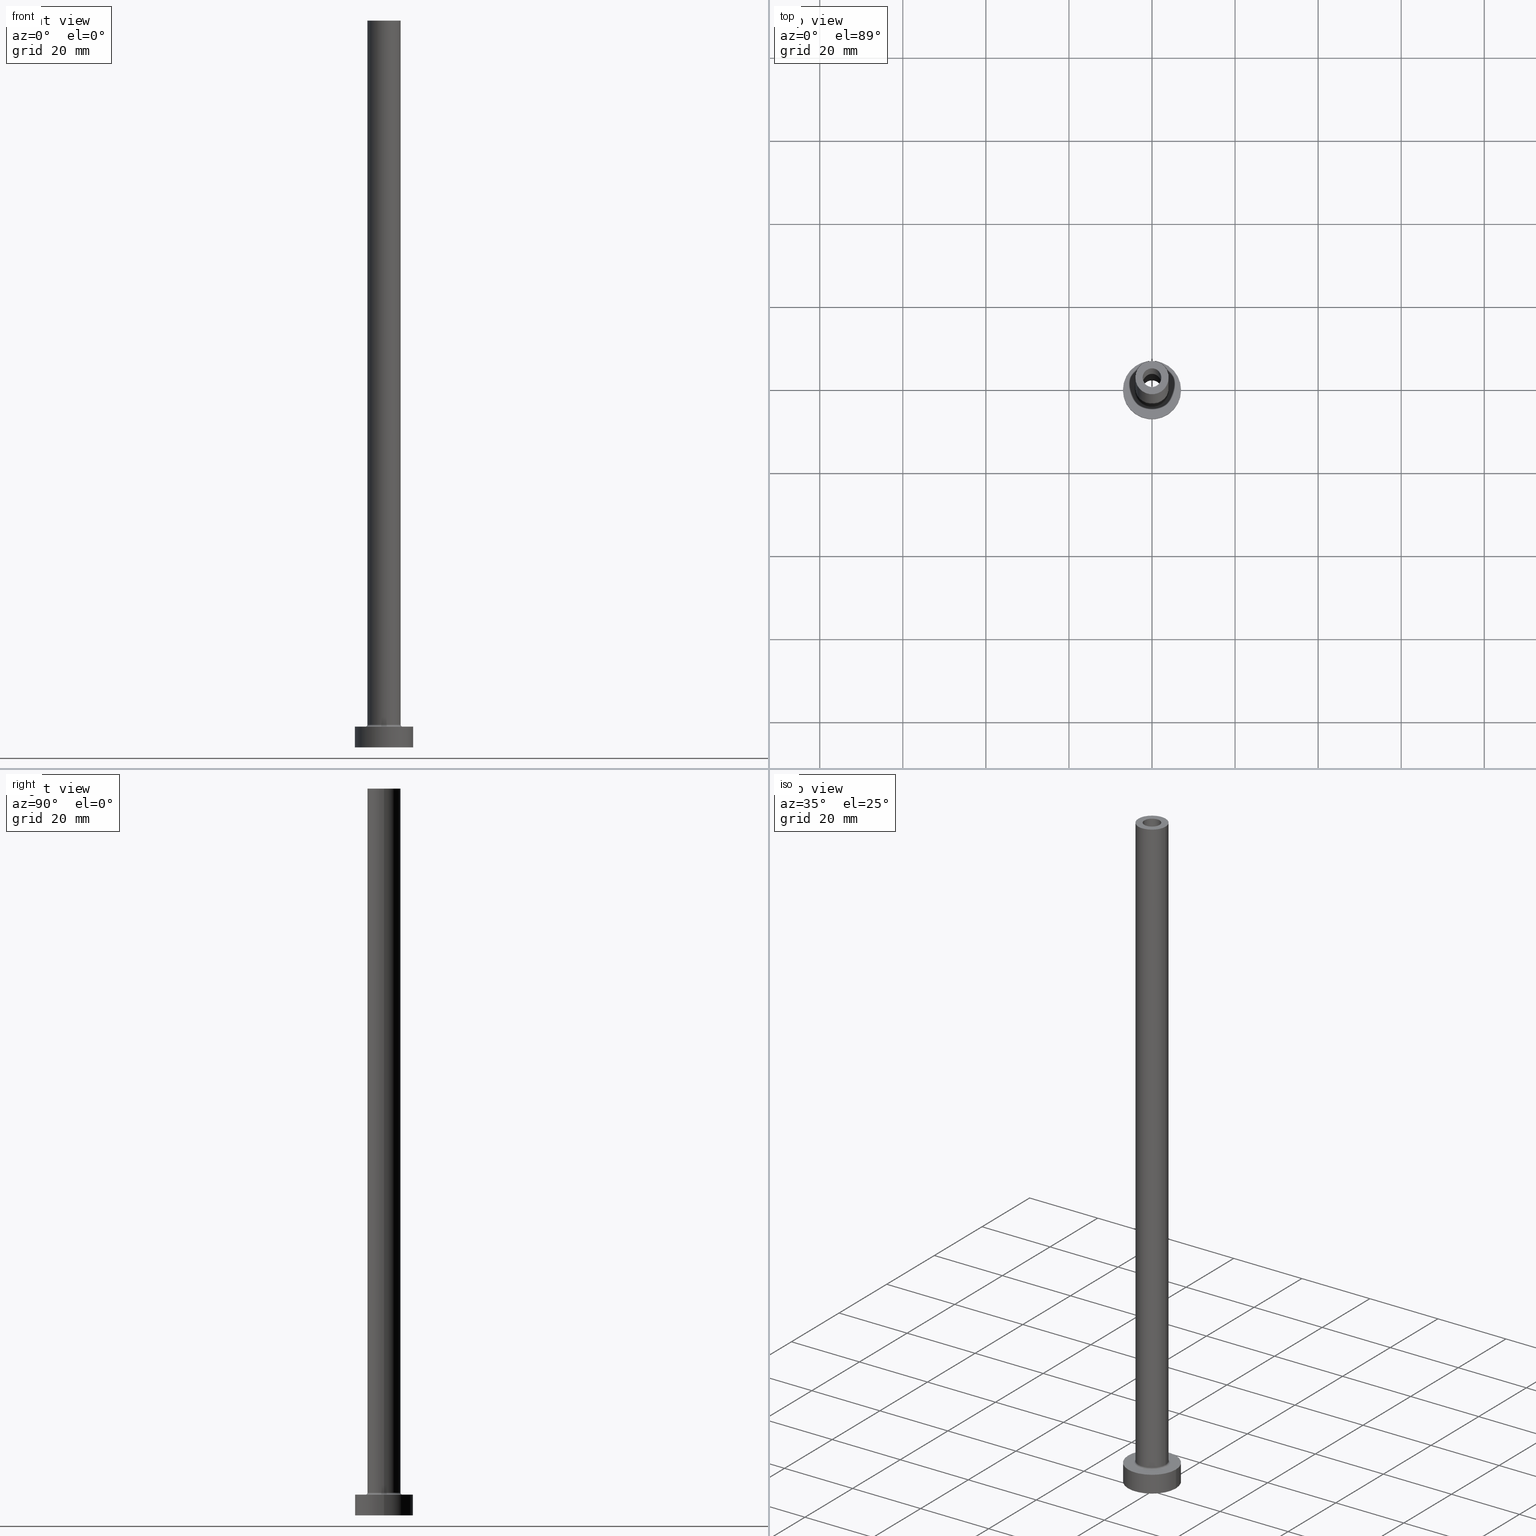
[diagram: canonical four-view strip — front | top / right | iso, engineering-drawing reading convention]
A machine part, canonical four-view strip (front | top / right | iso — engineering-drawing reading convention). The complete STEP part file that produces these views, byte-faithful:
ISO-10303-21;
HEADER;
FILE_DESCRIPTION (( 'STEP AP203' ),
    '1' );
FILE_NAME ('317a.STEP',
    '2023-02-13T11:04:57',
    ( '' ),
    ( '' ),
    'SwSTEP 2.0',
    'SolidWorks 2019',
    '' );
FILE_SCHEMA (( 'CONFIG_CONTROL_DESIGN' ));
ENDSEC;

DATA;
#1 = LOCAL_TIME ( 12, 4, 57.00000000000000000, #87 ) ;
#2 = DIRECTION ( 'NONE',  ( -0.000000000000000000, -0.000000000000000000, -1.000000000000000000 ) ) ;
#3 = DIRECTION ( 'NONE',  ( 0.000000000000000000, 0.000000000000000000, -1.000000000000000000 ) ) ;
#4 = CARTESIAN_POINT ( 'NONE',  ( -2.250000000000000000, 0.000000000000000000, 175.0000000000000284 ) ) ;
#5 = DIRECTION ( 'NONE',  ( 1.000000000000000000, 0.000000000000000000, 0.000000000000000000 ) ) ;
#6 = COORDINATED_UNIVERSAL_TIME_OFFSET ( 1, 0, .AHEAD. ) ;
#7 = VERTEX_POINT ( 'NONE', #59 ) ;
#8 = EDGE_CURVE ( 'NONE', #385, #7, #78, .T. ) ;
#9 = CIRCLE ( 'NONE', #81, 2.250000000000000000 ) ;
#10 = EDGE_CURVE ( 'NONE', #245, #385, #297, .T. ) ;
#11 = PERSON_AND_ORGANIZATION ( #68, #186 ) ;
#12 = APPLICATION_CONTEXT ( 'configuration controlled 3d designs of mechanical parts and assemblies' ) ;
#13 = ORIENTED_EDGE ( 'NONE', *, *, #221, .T. ) ;
#14 = CC_DESIGN_APPROVAL ( #380, ( #44 ) ) ;
#15 = VERTEX_POINT ( 'NONE', #157 ) ;
#16 = DIRECTION ( 'NONE',  ( 0.000000000000000000, 0.000000000000000000, 1.000000000000000000 ) ) ;
#17 = APPROVAL_DATE_TIME ( #134, #380 ) ;
#18 = ORIENTED_EDGE ( 'NONE', *, *, #229, .T. ) ;
#19 = DIRECTION ( 'NONE',  ( 0.000000000000000000, 0.000000000000000000, 1.000000000000000000 ) ) ;
#20 = ADVANCED_FACE ( 'NONE', ( #224 ), #216, .F. ) ;
#21 = EDGE_LOOP ( 'NONE', ( #338, #85, #450, #441 ) ) ;
#22 = AXIS2_PLACEMENT_3D ( 'NONE', #76, #362, #397 ) ;
#23 = CARTESIAN_POINT ( 'NONE',  ( 7.000000000000000000, 8.572527594031473190E-16, 5.000000000000000000 ) ) ;
#24 = EDGE_LOOP ( 'NONE', ( #161, #232 ) ) ;
#25 = DIRECTION ( 'NONE',  ( 1.000000000000000000, 0.000000000000000000, 0.000000000000000000 ) ) ;
#26 = EDGE_CURVE ( 'NONE', #302, #27, #456, .T. ) ;
#27 = VERTEX_POINT ( 'NONE', #219 ) ;
#28 = CARTESIAN_POINT ( 'NONE',  ( 4.000000000000000000, 4.898587196589412829E-16, 175.0000000000000284 ) ) ;
#29 = DIRECTION ( 'NONE',  ( 0.000000000000000000, 0.000000000000000000, -1.000000000000000000 ) ) ;
#30 = AXIS2_PLACEMENT_3D ( 'NONE', #114, #29, #393 ) ;
#31 = VECTOR ( 'NONE', #3, 1000.000000000000000 ) ;
#32 = DIRECTION ( 'NONE',  ( 1.000000000000000000, 0.000000000000000000, 0.000000000000000000 ) ) ;
#33 = ADVANCED_FACE ( 'NONE', ( #73 ), #178, .F. ) ;
#34 = DIRECTION ( 'NONE',  ( 1.000000000000000000, 0.000000000000000000, 0.000000000000000000 ) ) ;
#35 = FACE_OUTER_BOUND ( 'NONE', #379, .T. ) ;
#36 = CIRCLE ( 'NONE', #461, 0.5000000000000004441 ) ;
#37 = LOCAL_TIME ( 12, 4, 57.00000000000000000, #6 ) ;
#38 = FACE_OUTER_BOUND ( 'NONE', #200, .T. ) ;
#39 = FACE_BOUND ( 'NONE', #63, .T. ) ;
#40 = DIRECTION ( 'NONE',  ( 0.000000000000000000, 0.000000000000000000, 1.000000000000000000 ) ) ;
#41 = ORIENTED_EDGE ( 'NONE', *, *, #330, .F. ) ;
#42 = EDGE_LOOP ( 'NONE', ( #175, #192, #236, #55 ) ) ;
#43 = AXIS2_PLACEMENT_3D ( 'NONE', #348, #343, #352 ) ;
#44 = PRODUCT_DEFINITION_FORMATION_WITH_SPECIFIED_SOURCE ( 'LIBOVOLN�', '', #392, .NOT_KNOWN. ) ;
#45 = ORIENTED_EDGE ( 'NONE', *, *, #268, .F. ) ;
#46 = PRODUCT_RELATED_PRODUCT_CATEGORY ( 'detail', '', ( #392 ) ) ;
#47 = CALENDAR_DATE ( 2023, 13, 2 ) ;
#48 = ORIENTED_EDGE ( 'NONE', *, *, #229, .F. ) ;
#49 = VECTOR ( 'NONE', #427, 1000.000000000000000 ) ;
#50 = AXIS2_PLACEMENT_3D ( 'NONE', #390, #262, #214 ) ;
#51 = VERTEX_POINT ( 'NONE', #361 ) ;
#52 = DIRECTION ( 'NONE',  ( 1.000000000000000000, 0.000000000000000000, 0.000000000000000000 ) ) ;
#53 = EDGE_CURVE ( 'NONE', #440, #245, #407, .T. ) ;
#54 = COORDINATED_UNIVERSAL_TIME_OFFSET ( 1, 0, .AHEAD. ) ;
#55 = ORIENTED_EDGE ( 'NONE', *, *, #369, .F. ) ;
#56 = FACE_OUTER_BOUND ( 'NONE', #283, .T. ) ;
#57 = EDGE_LOOP ( 'NONE', ( #448, #287 ) ) ;
#58 = CARTESIAN_POINT ( 'NONE',  ( -7.000000000000000000, 0.000000000000000000, 5.000000000000000000 ) ) ;
#59 = CARTESIAN_POINT ( 'NONE',  ( -4.000000000000000000, 0.000000000000000000, 5.500000000000005329 ) ) ;
#60 = TOROIDAL_SURFACE ( 'NONE', #311, 4.500000000000000888, 0.5000000000000000000 ) ;
#61 = CARTESIAN_POINT ( 'NONE',  ( -2.399999999999999911, 0.000000000000000000, 130.0000000000000000 ) ) ;
#62 = EDGE_CURVE ( 'NONE', #385, #234, #36, .T. ) ;
#63 = EDGE_LOOP ( 'NONE', ( #90, #211 ) ) ;
#64 = CARTESIAN_POINT ( 'NONE',  ( 0.000000000000000000, 0.000000000000000000, 175.0000000000000284 ) ) ;
#65 = DIRECTION ( 'NONE',  ( 0.000000000000000000, 0.000000000000000000, 1.000000000000000000 ) ) ;
#66 = PERSON_AND_ORGANIZATION ( #68, #186 ) ;
#67 = DIRECTION ( 'NONE',  ( 1.000000000000000000, 0.000000000000000000, -0.000000000000000000 ) ) ;
#68 = PERSON ( 'NEUR�EN�', 'NEUR�EN�', 'NEUR�EN�', ('NEUR�EN�'), ('NEUR�EN�'), ('NEUR�EN�') ) ;
#69 =( LENGTH_UNIT ( ) NAMED_UNIT ( * ) SI_UNIT ( .MILLI., .METRE. ) );
#70 = AXIS2_PLACEMENT_3D ( 'NONE', #176, #375, #25 ) ;
#71 = CARTESIAN_POINT ( 'NONE',  ( 2.399999999999999911, 2.939152317953647106E-16, 136.7882250993908713 ) ) ;
#72 = CARTESIAN_POINT ( 'NONE',  ( 0.000000000000000000, 0.000000000000000000, 5.500000000000005329 ) ) ;
#73 = FACE_OUTER_BOUND ( 'NONE', #334, .T. ) ;
#74 = LINE ( 'NONE', #218, #31 ) ;
#75 = DIRECTION ( 'NONE',  ( -0.000000000000000000, -0.000000000000000000, -1.000000000000000000 ) ) ;
#76 = CARTESIAN_POINT ( 'NONE',  ( 0.000000000000000000, 0.000000000000000000, 175.0000000000000284 ) ) ;
#77 = UNCERTAINTY_MEASURE_WITH_UNIT (LENGTH_MEASURE( 1.000000000000000082E-05 ), #69, 'distance_accuracy_value', 'NONE');
#78 = CIRCLE ( 'NONE', #266, 4.000000000000000000 ) ;
#79 = CLOSED_SHELL ( 'NONE', ( #150, #20, #349, #363, #242, #124, #300, #395, #291, #358, #458, #33, #132, #80 ) ) ;
#80 = ADVANCED_FACE ( 'NONE', ( #35 ), #152, .F. ) ;
#81 = AXIS2_PLACEMENT_3D ( 'NONE', #244, #452, #52 ) ;
#82 = APPROVAL_PERSON_ORGANIZATION ( #443, #125, #376 ) ;
#83 = DIRECTION ( 'NONE',  ( 1.000000000000000000, 0.000000000000000000, 0.000000000000000000 ) ) ;
#84 = CC_DESIGN_PERSON_AND_ORGANIZATION_ASSIGNMENT ( #282, #235, ( #44 ) ) ;
#85 = ORIENTED_EDGE ( 'NONE', *, *, #8, .F. ) ;
#86 = AXIS2_PLACEMENT_3D ( 'NONE', #432, #399, #83 ) ;
#87 = COORDINATED_UNIVERSAL_TIME_OFFSET ( 1, 0, .AHEAD. ) ;
#88 = ORIENTED_EDGE ( 'NONE', *, *, #257, .T. ) ;
#89 = CALENDAR_DATE ( 2023, 13, 2 ) ;
#90 = ORIENTED_EDGE ( 'NONE', *, *, #451, .F. ) ;
#91 = CARTESIAN_POINT ( 'NONE',  ( -7.000000000000000000, 0.000000000000000000, 5.000000000000000000 ) ) ;
#92 = AXIS2_PLACEMENT_3D ( 'NONE', #359, #457, #188 ) ;
#93 = APPROVAL_STATUS ( 'not_yet_approved' ) ;
#94 = EDGE_LOOP ( 'NONE', ( #206, #415 ) ) ;
#95 = FACE_OUTER_BOUND ( 'NONE', #195, .T. ) ;
#96 = ORIENTED_EDGE ( 'NONE', *, *, #401, .T. ) ;
#97 = DIRECTION ( 'NONE',  ( 1.000000000000000000, 0.000000000000000000, -0.000000000000000000 ) ) ;
#98 = ORIENTED_EDGE ( 'NONE', *, *, #204, .T. ) ;
#99 = EDGE_CURVE ( 'NONE', #239, #123, #438, .T. ) ;
#100 = CYLINDRICAL_SURFACE ( 'NONE', #271, 4.000000000000000000 ) ;
#101 = ORIENTED_EDGE ( 'NONE', *, *, #403, .F. ) ;
#102 = CIRCLE ( 'NONE', #70, 2.250000000000000000 ) ;
#103 = CARTESIAN_POINT ( 'NONE',  ( 2.250000000000000000, 2.755455298081544285E-16, 130.0000000000000000 ) ) ;
#104 = APPROVAL_PERSON_ORGANIZATION ( #333, #380, #228 ) ;
#105 = DIRECTION ( 'NONE',  ( 0.000000000000000000, 0.000000000000000000, 1.000000000000000000 ) ) ;
#106 = APPLICATION_PROTOCOL_DEFINITION ( 'international standard', 'config_control_design', 1994, #429 ) ;
#107 = DIRECTION ( 'NONE',  ( 0.000000000000000000, 0.000000000000000000, -1.000000000000000000 ) ) ;
#108 = DIRECTION ( 'NONE',  ( 1.000000000000000000, 0.000000000000000000, 0.000000000000000000 ) ) ;
#109 = EDGE_CURVE ( 'NONE', #27, #51, #179, .T. ) ;
#110 = CYLINDRICAL_SURFACE ( 'NONE', #112, 2.250000000000000000 ) ;
#111 = CARTESIAN_POINT ( 'NONE',  ( 0.000000000000000000, 0.000000000000000000, 0.000000000000000000 ) ) ;
#112 = AXIS2_PLACEMENT_3D ( 'NONE', #154, #158, #357 ) ;
#113 = CC_DESIGN_APPROVAL ( #125, ( #366 ) ) ;
#114 = CARTESIAN_POINT ( 'NONE',  ( 0.000000000000000000, 0.000000000000000000, 136.7882250993908713 ) ) ;
#115 = DIRECTION ( 'NONE',  ( 0.000000000000000000, 0.000000000000000000, 1.000000000000000000 ) ) ;
#116 = CYLINDRICAL_SURFACE ( 'NONE', #259, 7.000000000000000000 ) ;
#117 = DIRECTION ( 'NONE',  ( 0.000000000000000000, 0.000000000000000000, 1.000000000000000000 ) ) ;
#118 = CC_DESIGN_DATE_AND_TIME_ASSIGNMENT ( #159, #299, ( #284 ) ) ;
#119 = CARTESIAN_POINT ( 'NONE',  ( 0.000000000000000000, 0.000000000000000000, 5.000000000000000000 ) ) ;
#120 = APPROVAL_STATUS ( 'not_yet_approved' ) ;
#121 = CIRCLE ( 'NONE', #425, 2.250000000000000000 ) ;
#122 = DATE_AND_TIME ( #47, #1 ) ;
#123 = VERTEX_POINT ( 'NONE', #4 ) ;
#124 = ADVANCED_FACE ( 'NONE', ( #213 ), #116, .T. ) ;
#125 = APPROVAL ( #93, 'NEUR�EN�' ) ;
#126 = APPROVAL_STATUS ( 'not_yet_approved' ) ;
#127 = ORIENTED_EDGE ( 'NONE', *, *, #109, .T. ) ;
#128 = AXIS2_PLACEMENT_3D ( 'NONE', #332, #227, #5 ) ;
#129 = AXIS2_PLACEMENT_3D ( 'NONE', #431, #117, #367 ) ;
#130 = ORIENTED_EDGE ( 'NONE', *, *, #99, .T. ) ;
#131 = DATE_AND_TIME ( #350, #163 ) ;
#132 = ADVANCED_FACE ( 'NONE', ( #459, #38 ), #331, .F. ) ;
#133 = MANIFOLD_SOLID_BREP ( 'Odebrat vysunut�m4', #79 ) ;
#134 = DATE_AND_TIME ( #89, #37 ) ;
#135 = ORIENTED_EDGE ( 'NONE', *, *, #251, .T. ) ;
#136 = FACE_OUTER_BOUND ( 'NONE', #313, .T. ) ;
#137 = CIRCLE ( 'NONE', #199, 7.000000000000000000 ) ;
#138 = ORIENTED_EDGE ( 'NONE', *, *, #421, .T. ) ;
#139 = DIRECTION ( 'NONE',  ( -0.000000000000000000, -0.000000000000000000, -1.000000000000000000 ) ) ;
#140 = APPROVAL ( #126, 'NEUR�EN�' ) ;
#141 = ORIENTED_EDGE ( 'NONE', *, *, #369, .T. ) ;
#142 = CYLINDRICAL_SURFACE ( 'NONE', #370, 4.000000000000000000 ) ;
#143 = CARTESIAN_POINT ( 'NONE',  ( 0.000000000000000000, 0.000000000000000000, 5.500000000000005329 ) ) ;
#144 = FACE_BOUND ( 'NONE', #435, .T. ) ;
#145 = ORIENTED_EDGE ( 'NONE', *, *, #341, .F. ) ;
#146 = CIRCLE ( 'NONE', #50, 2.399999999999999911 ) ;
#147 = AXIS2_PLACEMENT_3D ( 'NONE', #322, #2, #187 ) ;
#148 = CARTESIAN_POINT ( 'NONE',  ( -2.399999999999999911, 0.000000000000000000, 136.7882250993908713 ) ) ;
#149 = DIRECTION ( 'NONE',  ( 1.000000000000000000, 0.000000000000000000, -0.000000000000000000 ) ) ;
#150 = ADVANCED_FACE ( 'NONE', ( #292 ), #110, .F. ) ;
#151 = SHAPE_DEFINITION_REPRESENTATION ( #177, #241 ) ;
#152 = CYLINDRICAL_SURFACE ( 'NONE', #194, 2.250000000000000000 ) ;
#153 = DIRECTION ( 'NONE',  ( 1.000000000000000000, 0.000000000000000000, 0.000000000000000000 ) ) ;
#154 = CARTESIAN_POINT ( 'NONE',  ( 0.000000000000000000, 0.000000000000000000, 175.0000000000000284 ) ) ;
#155 = CARTESIAN_POINT ( 'NONE',  ( 0.000000000000000000, 0.000000000000000000, 130.0000000000000000 ) ) ;
#156 = CIRCLE ( 'NONE', #162, 7.000000000000000000 ) ;
#157 = CARTESIAN_POINT ( 'NONE',  ( -2.250000000000000000, 0.000000000000000000, 130.0000000000000000 ) ) ;
#158 = DIRECTION ( 'NONE',  ( 0.000000000000000000, 0.000000000000000000, -1.000000000000000000 ) ) ;
#159 = DATE_AND_TIME ( #400, #312 ) ;
#160 = ORIENTED_EDGE ( 'NONE', *, *, #437, .F. ) ;
#161 = ORIENTED_EDGE ( 'NONE', *, *, #233, .T. ) ;
#162 = AXIS2_PLACEMENT_3D ( 'NONE', #290, #105, #253 ) ;
#163 = LOCAL_TIME ( 12, 4, 57.00000000000000000, #274 ) ;
#164 = EDGE_CURVE ( 'NONE', #280, #51, #419, .T. ) ;
#165 = PERSON_AND_ORGANIZATION ( #68, #186 ) ;
#166 = ORIENTED_EDGE ( 'NONE', *, *, #53, .F. ) ;
#167 = CYLINDRICAL_SURFACE ( 'NONE', #402, 7.000000000000000000 ) ;
#168 = EDGE_LOOP ( 'NONE', ( #406, #249, #309, #41 ) ) ;
#169 = CARTESIAN_POINT ( 'NONE',  ( 0.000000000000000000, 0.000000000000000000, 175.0000000000000284 ) ) ;
#170 = CC_DESIGN_PERSON_AND_ORGANIZATION_ASSIGNMENT ( #346, #248, ( #44 ) ) ;
#171 = ORIENTED_EDGE ( 'NONE', *, *, #164, .T. ) ;
#172 = CARTESIAN_POINT ( 'NONE',  ( 0.000000000000000000, 0.000000000000000000, 5.500000000000005329 ) ) ;
#173 = ORIENTED_EDGE ( 'NONE', *, *, #26, .T. ) ;
#174 = DIRECTION ( 'NONE',  ( -0.000000000000000000, -0.000000000000000000, -1.000000000000000000 ) ) ;
#175 = ORIENTED_EDGE ( 'NONE', *, *, #193, .T. ) ;
#176 = CARTESIAN_POINT ( 'NONE',  ( 0.000000000000000000, 0.000000000000000000, 130.0000000000000000 ) ) ;
#177 = PRODUCT_DEFINITION_SHAPE ( 'NONE', 'NONE',  #284 ) ;
#178 = CYLINDRICAL_SURFACE ( 'NONE', #215, 2.399999999999999911 ) ;
#179 = CIRCLE ( 'NONE', #147, 2.399999999999999911 ) ;
#180 = DIRECTION ( 'NONE',  ( 0.000000000000000000, 0.000000000000000000, 1.000000000000000000 ) ) ;
#181 = DIRECTION ( 'NONE',  ( 0.000000000000000000, -1.000000000000000000, 0.000000000000000000 ) ) ;
#182 = EDGE_CURVE ( 'NONE', #353, #347, #156, .T. ) ;
#183 = CARTESIAN_POINT ( 'NONE',  ( 4.000000000000000000, 4.898587196589412829E-16, 175.0000000000000284 ) ) ;
#184 =( NAMED_UNIT ( * ) PLANE_ANGLE_UNIT ( ) SI_UNIT ( $, .RADIAN. ) );
#185 = CIRCLE ( 'NONE', #92, 0.5000000000000004441 ) ;
#186 = ORGANIZATION ( 'NEUR�EN�', 'NEUR�EN�', '' ) ;
#187 = DIRECTION ( 'NONE',  ( 1.000000000000000000, 0.000000000000000000, 0.000000000000000000 ) ) ;
#188 = DIRECTION ( 'NONE',  ( -1.000000000000000000, 1.224646799147351482E-16, 0.000000000000000000 ) ) ;
#189 = DIRECTION ( 'NONE',  ( 1.000000000000000000, 0.000000000000000000, 0.000000000000000000 ) ) ;
#190 = EDGE_LOOP ( 'NONE', ( #316, #88 ) ) ;
#191 = APPROVAL_ROLE ( '' ) ;
#192 = ORIENTED_EDGE ( 'NONE', *, *, #324, .T. ) ;
#193 = EDGE_CURVE ( 'NONE', #123, #239, #121, .T. ) ;
#194 = AXIS2_PLACEMENT_3D ( 'NONE', #430, #107, #396 ) ;
#195 = EDGE_LOOP ( 'NONE', ( #377, #166, #210, #243 ) ) ;
#196 = ORIENTED_EDGE ( 'NONE', *, *, #182, .F. ) ;
#197 = COORDINATED_UNIVERSAL_TIME_OFFSET ( 1, 0, .AHEAD. ) ;
#198 = ORIENTED_EDGE ( 'NONE', *, *, #251, .F. ) ;
#199 = AXIS2_PLACEMENT_3D ( 'NONE', #119, #40, #189 ) ;
#200 = EDGE_LOOP ( 'NONE', ( #101, #198 ) ) ;
#201 = DIRECTION ( 'NONE',  ( -1.000000000000000000, 0.000000000000000000, 0.000000000000000000 ) ) ;
#202 = CALENDAR_DATE ( 2023, 13, 2 ) ;
#203 = ORIENTED_EDGE ( 'NONE', *, *, #324, .F. ) ;
#204 = EDGE_CURVE ( 'NONE', #413, #234, #247, .T. ) ;
#205 = PLANE ( 'NONE',  #327 ) ;
#206 = ORIENTED_EDGE ( 'NONE', *, *, #221, .F. ) ;
#207 = DIRECTION ( 'NONE',  ( -0.000000000000000000, -0.000000000000000000, -1.000000000000000000 ) ) ;
#208 = CIRCLE ( 'NONE', #43, 2.399999999999999911 ) ;
#209 = LOCAL_TIME ( 12, 4, 57.00000000000000000, #54 ) ;
#210 = ORIENTED_EDGE ( 'NONE', *, *, #330, .T. ) ;
#211 = ORIENTED_EDGE ( 'NONE', *, *, #109, .F. ) ;
#212 = CARTESIAN_POINT ( 'NONE',  ( 7.000000000000000000, 8.572527594031473190E-16, 0.000000000000000000 ) ) ;
#213 = FACE_OUTER_BOUND ( 'NONE', #306, .T. ) ;
#214 = DIRECTION ( 'NONE',  ( 1.000000000000000000, 0.000000000000000000, 0.000000000000000000 ) ) ;
#215 = AXIS2_PLACEMENT_3D ( 'NONE', #222, #360, #389 ) ;
#216 = CYLINDRICAL_SURFACE ( 'NONE', #30, 2.399999999999999911 ) ;
#217 = AXIS2_PLACEMENT_3D ( 'NONE', #386, #246, #240 ) ;
#218 = CARTESIAN_POINT ( 'NONE',  ( -2.250000000000000000, 0.000000000000000000, 175.0000000000000284 ) ) ;
#219 = CARTESIAN_POINT ( 'NONE',  ( 2.399999999999999911, 2.939152317953647106E-16, 0.000000000000000000 ) ) ;
#220 = DIRECTION ( 'NONE',  ( 0.000000000000000000, 0.000000000000000000, 1.000000000000000000 ) ) ;
#221 = EDGE_CURVE ( 'NONE', #411, #344, #398, .T. ) ;
#222 = CARTESIAN_POINT ( 'NONE',  ( 0.000000000000000000, 0.000000000000000000, 136.7882250993908713 ) ) ;
#223 = DIRECTION ( 'NONE',  ( -0.000000000000000000, -0.000000000000000000, -1.000000000000000000 ) ) ;
#224 = FACE_OUTER_BOUND ( 'NONE', #336, .T. ) ;
#225 = AXIS2_PLACEMENT_3D ( 'NONE', #155, #296, #108 ) ;
#226 = APPROVAL_PERSON_ORGANIZATION ( #11, #140, #191 ) ;
#227 = DIRECTION ( 'NONE',  ( -0.000000000000000000, -0.000000000000000000, -1.000000000000000000 ) ) ;
#228 = APPROVAL_ROLE ( '' ) ;
#229 = EDGE_CURVE ( 'NONE', #234, #413, #453, .T. ) ;
#230 = AXIS2_PLACEMENT_3D ( 'NONE', #381, #19, #445 ) ;
#231 = CC_DESIGN_SECURITY_CLASSIFICATION ( #366, ( #44 ) ) ;
#232 = ORIENTED_EDGE ( 'NONE', *, *, #182, .T. ) ;
#233 = EDGE_CURVE ( 'NONE', #347, #353, #137, .T. ) ;
#234 = VERTEX_POINT ( 'NONE', #285 ) ;
#235 = PERSON_AND_ORGANIZATION_ROLE ( 'design_supplier' ) ;
#236 = ORIENTED_EDGE ( 'NONE', *, *, #269, .F. ) ;
#237 = FACE_OUTER_BOUND ( 'NONE', #304, .T. ) ;
#238 = VECTOR ( 'NONE', #139, 1000.000000000000000 ) ;
#239 = VERTEX_POINT ( 'NONE', #250 ) ;
#240 = DIRECTION ( 'NONE',  ( 1.000000000000000000, 0.000000000000000000, 0.000000000000000000 ) ) ;
#241 = ADVANCED_BREP_SHAPE_REPRESENTATION ( '317a', ( #133, #129 ), #418 ) ;
#242 = ADVANCED_FACE ( 'NONE', ( #237 ), #167, .T. ) ;
#243 = ORIENTED_EDGE ( 'NONE', *, *, #437, .T. ) ;
#244 = CARTESIAN_POINT ( 'NONE',  ( 0.000000000000000000, 0.000000000000000000, 130.0000000000000000 ) ) ;
#245 = VERTEX_POINT ( 'NONE', #28 ) ;
#246 = DIRECTION ( 'NONE',  ( 0.000000000000000000, 0.000000000000000000, 1.000000000000000000 ) ) ;
#247 = CIRCLE ( 'NONE', #128, 4.500000000000000888 ) ;
#248 = PERSON_AND_ORGANIZATION_ROLE ( 'creator' ) ;
#249 = ORIENTED_EDGE ( 'NONE', *, *, #10, .T. ) ;
#250 = CARTESIAN_POINT ( 'NONE',  ( 2.250000000000000000, 2.755455298081544285E-16, 175.0000000000000284 ) ) ;
#251 = EDGE_CURVE ( 'NONE', #302, #280, #208, .T. ) ;
#252 = DATE_AND_TIME ( #202, #209 ) ;
#253 = DIRECTION ( 'NONE',  ( 1.000000000000000000, 0.000000000000000000, 0.000000000000000000 ) ) ;
#254 = MECHANICAL_CONTEXT ( 'NONE', #429, 'mechanical' ) ;
#255 = CARTESIAN_POINT ( 'NONE',  ( 0.000000000000000000, 0.000000000000000000, 175.0000000000000284 ) ) ;
#256 = CARTESIAN_POINT ( 'NONE',  ( -4.500000000000000888, 5.510910596163088569E-16, 5.000000000000002665 ) ) ;
#257 = EDGE_CURVE ( 'NONE', #342, #15, #9, .T. ) ;
#258 = DIRECTION ( 'NONE',  ( 0.000000000000000000, 0.000000000000000000, 1.000000000000000000 ) ) ;
#259 = AXIS2_PLACEMENT_3D ( 'NONE', #263, #75, #325 ) ;
#260 = CARTESIAN_POINT ( 'NONE',  ( 0.000000000000000000, 0.000000000000000000, 5.500000000000005329 ) ) ;
#261 = DIRECTION ( 'NONE',  ( 1.000000000000000000, 0.000000000000000000, 0.000000000000000000 ) ) ;
#262 = DIRECTION ( 'NONE',  ( -0.000000000000000000, -0.000000000000000000, -1.000000000000000000 ) ) ;
#263 = CARTESIAN_POINT ( 'NONE',  ( 0.000000000000000000, 0.000000000000000000, 5.000000000000000000 ) ) ;
#264 = CARTESIAN_POINT ( 'NONE',  ( -7.000000000000000000, 0.000000000000000000, 0.000000000000000000 ) ) ;
#265 = DIRECTION ( 'NONE',  ( 0.000000000000000000, 0.000000000000000000, 1.000000000000000000 ) ) ;
#266 = AXIS2_PLACEMENT_3D ( 'NONE', #143, #258, #261 ) ;
#267 = AXIS2_PLACEMENT_3D ( 'NONE', #72, #115, #153 ) ;
#268 = EDGE_CURVE ( 'NONE', #347, #411, #409, .T. ) ;
#269 = EDGE_CURVE ( 'NONE', #15, #342, #102, .T. ) ;
#270 = ORIENTED_EDGE ( 'NONE', *, *, #315, .T. ) ;
#271 = AXIS2_PLACEMENT_3D ( 'NONE', #64, #174, #201 ) ;
#272 = ORIENTED_EDGE ( 'NONE', *, *, #62, .F. ) ;
#273 = CARTESIAN_POINT ( 'NONE',  ( 2.250000000000000000, 2.755455298081544285E-16, 175.0000000000000284 ) ) ;
#274 = COORDINATED_UNIVERSAL_TIME_OFFSET ( 1, 0, .AHEAD. ) ;
#275 = ORIENTED_EDGE ( 'NONE', *, *, #268, .T. ) ;
#276 = LINE ( 'NONE', #279, #365 ) ;
#277 = AXIS2_PLACEMENT_3D ( 'NONE', #454, #180, #67 ) ;
#278 = ORIENTED_EDGE ( 'NONE', *, *, #53, .T. ) ;
#279 = CARTESIAN_POINT ( 'NONE',  ( 7.000000000000000000, 8.572527594031473190E-16, 5.000000000000000000 ) ) ;
#280 = VERTEX_POINT ( 'NONE', #61 ) ;
#281 = CARTESIAN_POINT ( 'NONE',  ( 0.000000000000000000, 0.000000000000000000, 175.0000000000000284 ) ) ;
#282 = PERSON_AND_ORGANIZATION ( #68, #186 ) ;
#283 = EDGE_LOOP ( 'NONE', ( #160, #138, #48, #272 ) ) ;
#284 = PRODUCT_DEFINITION ( 'NEZN�M�', '', #44, #329 ) ;
#285 = CARTESIAN_POINT ( 'NONE',  ( 4.500000000000000888, 0.000000000000000000, 5.000000000000002665 ) ) ;
#286 = AXIS2_PLACEMENT_3D ( 'NONE', #260, #220, #328 ) ;
#287 = ORIENTED_EDGE ( 'NONE', *, *, #99, .F. ) ;
#288 = PLANE ( 'NONE',  #417 ) ;
#289 = CC_DESIGN_DATE_AND_TIME_ASSIGNMENT ( #131, #405, ( #366 ) ) ;
#290 = CARTESIAN_POINT ( 'NONE',  ( 0.000000000000000000, 0.000000000000000000, 5.000000000000000000 ) ) ;
#291 = ADVANCED_FACE ( 'NONE', ( #95 ), #100, .T. ) ;
#292 = FACE_OUTER_BOUND ( 'NONE', #42, .T. ) ;
#293 = CARTESIAN_POINT ( 'NONE',  ( -4.000000000000000000, 0.000000000000000000, 175.0000000000000284 ) ) ;
#294 = DIRECTION ( 'NONE',  ( 0.000000000000000000, 0.000000000000000000, -1.000000000000000000 ) ) ;
#295 = AXIS2_PLACEMENT_3D ( 'NONE', #298, #265, #368 ) ;
#296 = DIRECTION ( 'NONE',  ( 0.000000000000000000, 0.000000000000000000, 1.000000000000000000 ) ) ;
#297 = LINE ( 'NONE', #183, #49 ) ;
#298 = CARTESIAN_POINT ( 'NONE',  ( 0.000000000000000000, 0.000000000000000000, 0.000000000000000000 ) ) ;
#299 = DATE_TIME_ROLE ( 'creation_date' ) ;
#300 = ADVANCED_FACE ( 'NONE', ( #144, #345 ), #383, .T. ) ;
#301 = CIRCLE ( 'NONE', #217, 7.000000000000000000 ) ;
#302 = VERTEX_POINT ( 'NONE', #317 ) ;
#303 = CC_DESIGN_PERSON_AND_ORGANIZATION_ASSIGNMENT ( #165, #439, ( #366 ) ) ;
#304 = EDGE_LOOP ( 'NONE', ( #196, #351, #270, #45 ) ) ;
#305 = VECTOR ( 'NONE', #294, 1000.000000000000000 ) ;
#306 = EDGE_LOOP ( 'NONE', ( #145, #444, #275, #13 ) ) ;
#307 = FACE_BOUND ( 'NONE', #57, .T. ) ;
#308 = SECURITY_CLASSIFICATION_LEVEL ( 'unclassified' ) ;
#309 = ORIENTED_EDGE ( 'NONE', *, *, #8, .T. ) ;
#310 = DIRECTION ( 'NONE',  ( 0.000000000000000000, 0.000000000000000000, 1.000000000000000000 ) ) ;
#311 = AXIS2_PLACEMENT_3D ( 'NONE', #172, #16, #354 ) ;
#312 = LOCAL_TIME ( 12, 4, 57.00000000000000000, #197 ) ;
#313 = EDGE_LOOP ( 'NONE', ( #278, #96 ) ) ;
#314 = FACE_OUTER_BOUND ( 'NONE', #168, .T. ) ;
#315 = EDGE_CURVE ( 'NONE', #344, #411, #301, .T. ) ;
#316 = ORIENTED_EDGE ( 'NONE', *, *, #269, .T. ) ;
#317 = CARTESIAN_POINT ( 'NONE',  ( 2.399999999999999911, 2.939152317953647106E-16, 130.0000000000000000 ) ) ;
#318 = ORIENTED_EDGE ( 'NONE', *, *, #26, .F. ) ;
#319 = AXIS2_PLACEMENT_3D ( 'NONE', #255, #364, #34 ) ;
#320 = DIRECTION ( 'NONE',  ( 0.000000000000000000, 0.000000000000000000, 1.000000000000000000 ) ) ;
#321 = PERSON_AND_ORGANIZATION_ROLE ( 'design_owner' ) ;
#322 = CARTESIAN_POINT ( 'NONE',  ( 0.000000000000000000, 0.000000000000000000, 0.000000000000000000 ) ) ;
#323 = CARTESIAN_POINT ( 'NONE',  ( 4.000000000000000000, 4.898587196589412829E-16, 5.500000000000005329 ) ) ;
#324 = EDGE_CURVE ( 'NONE', #239, #342, #447, .T. ) ;
#325 = DIRECTION ( 'NONE',  ( -1.000000000000000000, 0.000000000000000000, 0.000000000000000000 ) ) ;
#326 = CARTESIAN_POINT ( 'NONE',  ( 4.500000000000000888, 0.000000000000000000, 5.500000000000005329 ) ) ;
#327 = AXIS2_PLACEMENT_3D ( 'NONE', #169, #310, #97 ) ;
#328 = DIRECTION ( 'NONE',  ( 1.000000000000000000, 0.000000000000000000, 0.000000000000000000 ) ) ;
#329 = DESIGN_CONTEXT ( 'detailed design', #12, 'design' ) ;
#330 = EDGE_CURVE ( 'NONE', #440, #7, #404, .T. ) ;
#331 = PLANE ( 'NONE',  #277 ) ;
#332 = CARTESIAN_POINT ( 'NONE',  ( 0.000000000000000000, 0.000000000000000000, 5.000000000000000000 ) ) ;
#333 = PERSON_AND_ORGANIZATION ( #68, #186 ) ;
#334 = EDGE_LOOP ( 'NONE', ( #318, #135, #171, #371 ) ) ;
#335 = TOROIDAL_SURFACE ( 'NONE', #286, 4.500000000000000888, 0.5000000000000000000 ) ;
#336 = EDGE_LOOP ( 'NONE', ( #373, #173, #127, #382 ) ) ;
#337 = CC_DESIGN_PERSON_AND_ORGANIZATION_ASSIGNMENT ( #436, #372, ( #284 ) ) ;
#338 = ORIENTED_EDGE ( 'NONE', *, *, #421, .F. ) ;
#339 = VECTOR ( 'NONE', #378, 1000.000000000000000 ) ;
#340 = AXIS2_PLACEMENT_3D ( 'NONE', #422, #320, #32 ) ;
#341 = EDGE_CURVE ( 'NONE', #353, #344, #276, .T. ) ;
#342 = VERTEX_POINT ( 'NONE', #103 ) ;
#343 = DIRECTION ( 'NONE',  ( 0.000000000000000000, 0.000000000000000000, 1.000000000000000000 ) ) ;
#344 = VERTEX_POINT ( 'NONE', #212 ) ;
#345 = FACE_OUTER_BOUND ( 'NONE', #24, .T. ) ;
#346 = PERSON_AND_ORGANIZATION ( #68, #186 ) ;
#347 = VERTEX_POINT ( 'NONE', #91 ) ;
#348 = CARTESIAN_POINT ( 'NONE',  ( 0.000000000000000000, 0.000000000000000000, 130.0000000000000000 ) ) ;
#349 = ADVANCED_FACE ( 'NONE', ( #56 ), #60, .F. ) ;
#350 = CALENDAR_DATE ( 2023, 13, 2 ) ;
#351 = ORIENTED_EDGE ( 'NONE', *, *, #341, .T. ) ;
#352 = DIRECTION ( 'NONE',  ( 1.000000000000000000, 0.000000000000000000, 0.000000000000000000 ) ) ;
#353 = VERTEX_POINT ( 'NONE', #23 ) ;
#354 = DIRECTION ( 'NONE',  ( 1.000000000000000000, 0.000000000000000000, 0.000000000000000000 ) ) ;
#355 = DIRECTION ( 'NONE',  ( 1.000000000000000000, 0.000000000000000000, 0.000000000000000000 ) ) ;
#356 = VECTOR ( 'NONE', #207, 1000.000000000000000 ) ;
#357 = DIRECTION ( 'NONE',  ( -1.000000000000000000, 0.000000000000000000, 0.000000000000000000 ) ) ;
#358 = ADVANCED_FACE ( 'NONE', ( #307, #136 ), #205, .T. ) ;
#359 = CARTESIAN_POINT ( 'NONE',  ( -4.500000000000000888, 5.510910596163089556E-16, 5.500000000000005329 ) ) ;
#360 = DIRECTION ( 'NONE',  ( 0.000000000000000000, 0.000000000000000000, -1.000000000000000000 ) ) ;
#361 = CARTESIAN_POINT ( 'NONE',  ( -2.399999999999999911, 0.000000000000000000, 0.000000000000000000 ) ) ;
#362 = DIRECTION ( 'NONE',  ( 0.000000000000000000, 0.000000000000000000, 1.000000000000000000 ) ) ;
#363 = ADVANCED_FACE ( 'NONE', ( #314 ), #142, .T. ) ;
#364 = DIRECTION ( 'NONE',  ( 0.000000000000000000, 0.000000000000000000, 1.000000000000000000 ) ) ;
#365 = VECTOR ( 'NONE', #412, 1000.000000000000000 ) ;
#366 = SECURITY_CLASSIFICATION ( '', '', #308 ) ;
#367 = DIRECTION ( 'NONE',  ( 1.000000000000000000, 0.000000000000000000, 0.000000000000000000 ) ) ;
#368 = DIRECTION ( 'NONE',  ( 1.000000000000000000, 0.000000000000000000, 0.000000000000000000 ) ) ;
#369 = EDGE_CURVE ( 'NONE', #123, #15, #74, .T. ) ;
#370 = AXIS2_PLACEMENT_3D ( 'NONE', #281, #223, #460 ) ;
#371 = ORIENTED_EDGE ( 'NONE', *, *, #451, .T. ) ;
#372 = PERSON_AND_ORGANIZATION_ROLE ( 'creator' ) ;
#373 = ORIENTED_EDGE ( 'NONE', *, *, #403, .T. ) ;
#374 = CIRCLE ( 'NONE', #22, 4.000000000000000000 ) ;
#375 = DIRECTION ( 'NONE',  ( 0.000000000000000000, 0.000000000000000000, 1.000000000000000000 ) ) ;
#376 = APPROVAL_ROLE ( '' ) ;
#377 = ORIENTED_EDGE ( 'NONE', *, *, #10, .F. ) ;
#378 = DIRECTION ( 'NONE',  ( 0.000000000000000000, 0.000000000000000000, -1.000000000000000000 ) ) ;
#379 = EDGE_LOOP ( 'NONE', ( #203, #130, #141, #446 ) ) ;
#380 = APPROVAL ( #120, 'NEUR�EN�' ) ;
#381 = CARTESIAN_POINT ( 'NONE',  ( 0.000000000000000000, 0.000000000000000000, 5.000000000000000000 ) ) ;
#382 = ORIENTED_EDGE ( 'NONE', *, *, #164, .F. ) ;
#383 = PLANE ( 'NONE',  #230 ) ;
#384 = CIRCLE ( 'NONE', #225, 2.399999999999999911 ) ;
#385 = VERTEX_POINT ( 'NONE', #323 ) ;
#386 = CARTESIAN_POINT ( 'NONE',  ( 0.000000000000000000, 0.000000000000000000, 0.000000000000000000 ) ) ;
#387 = CARTESIAN_POINT ( 'NONE',  ( 0.000000000000000000, 0.000000000000000000, 175.0000000000000284 ) ) ;
#388 = APPROVAL_DATE_TIME ( #252, #125 ) ;
#389 = DIRECTION ( 'NONE',  ( -1.000000000000000000, 0.000000000000000000, 0.000000000000000000 ) ) ;
#390 = CARTESIAN_POINT ( 'NONE',  ( 0.000000000000000000, 0.000000000000000000, 0.000000000000000000 ) ) ;
#391 = DIRECTION ( 'NONE',  ( 0.000000000000000000, 0.000000000000000000, -1.000000000000000000 ) ) ;
#392 = PRODUCT ( '317a', '317a', '', ( #254 ) ) ;
#393 = DIRECTION ( 'NONE',  ( -1.000000000000000000, 0.000000000000000000, 0.000000000000000000 ) ) ;
#394 = FACE_OUTER_BOUND ( 'NONE', #21, .T. ) ;
#395 = ADVANCED_FACE ( 'NONE', ( #39, #420 ), #288, .F. ) ;
#396 = DIRECTION ( 'NONE',  ( -1.000000000000000000, 0.000000000000000000, 0.000000000000000000 ) ) ;
#397 = DIRECTION ( 'NONE',  ( 1.000000000000000000, 0.000000000000000000, 0.000000000000000000 ) ) ;
#398 = CIRCLE ( 'NONE', #295, 7.000000000000000000 ) ;
#399 = DIRECTION ( 'NONE',  ( -0.000000000000000000, -0.000000000000000000, -1.000000000000000000 ) ) ;
#400 = CALENDAR_DATE ( 2023, 13, 2 ) ;
#401 = EDGE_CURVE ( 'NONE', #245, #440, #374, .T. ) ;
#402 = AXIS2_PLACEMENT_3D ( 'NONE', #442, #416, #449 ) ;
#403 = EDGE_CURVE ( 'NONE', #280, #302, #384, .T. ) ;
#404 = LINE ( 'NONE', #414, #238 ) ;
#405 = DATE_TIME_ROLE ( 'classification_date' ) ;
#406 = ORIENTED_EDGE ( 'NONE', *, *, #401, .F. ) ;
#407 = CIRCLE ( 'NONE', #340, 4.000000000000000000 ) ;
#408 = CIRCLE ( 'NONE', #267, 4.000000000000000000 ) ;
#409 = LINE ( 'NONE', #58, #356 ) ;
#410 = CC_DESIGN_PERSON_AND_ORGANIZATION_ASSIGNMENT ( #66, #321, ( #392 ) ) ;
#411 = VERTEX_POINT ( 'NONE', #264 ) ;
#412 = DIRECTION ( 'NONE',  ( -0.000000000000000000, -0.000000000000000000, -1.000000000000000000 ) ) ;
#413 = VERTEX_POINT ( 'NONE', #256 ) ;
#414 = CARTESIAN_POINT ( 'NONE',  ( -4.000000000000000000, 0.000000000000000000, 175.0000000000000284 ) ) ;
#415 = ORIENTED_EDGE ( 'NONE', *, *, #315, .F. ) ;
#416 = DIRECTION ( 'NONE',  ( -0.000000000000000000, -0.000000000000000000, -1.000000000000000000 ) ) ;
#417 = AXIS2_PLACEMENT_3D ( 'NONE', #111, #428, #149 ) ;
#418 =( GEOMETRIC_REPRESENTATION_CONTEXT ( 3 ) GLOBAL_UNCERTAINTY_ASSIGNED_CONTEXT ( ( #77 ) ) GLOBAL_UNIT_ASSIGNED_CONTEXT ( ( #69, #184, #423 ) ) REPRESENTATION_CONTEXT ( 'NONE', 'WORKASPACE' ) );
#419 = LINE ( 'NONE', #148, #305 ) ;
#420 = FACE_OUTER_BOUND ( 'NONE', #94, .T. ) ;
#421 = EDGE_CURVE ( 'NONE', #7, #413, #185, .T. ) ;
#422 = CARTESIAN_POINT ( 'NONE',  ( 0.000000000000000000, 0.000000000000000000, 175.0000000000000284 ) ) ;
#423 =( NAMED_UNIT ( * ) SI_UNIT ( $, .STERADIAN. ) SOLID_ANGLE_UNIT ( ) );
#424 = DIRECTION ( 'NONE',  ( 0.000000000000000000, 0.000000000000000000, -1.000000000000000000 ) ) ;
#425 = AXIS2_PLACEMENT_3D ( 'NONE', #387, #65, #355 ) ;
#426 = CC_DESIGN_APPROVAL ( #140, ( #284 ) ) ;
#427 = DIRECTION ( 'NONE',  ( -0.000000000000000000, -0.000000000000000000, -1.000000000000000000 ) ) ;
#428 = DIRECTION ( 'NONE',  ( 0.000000000000000000, 0.000000000000000000, 1.000000000000000000 ) ) ;
#429 = APPLICATION_CONTEXT ( 'configuration controlled 3d designs of mechanical parts and assemblies' ) ;
#430 = CARTESIAN_POINT ( 'NONE',  ( 0.000000000000000000, 0.000000000000000000, 175.0000000000000284 ) ) ;
#431 = CARTESIAN_POINT ( 'NONE',  ( 0.000000000000000000, 0.000000000000000000, 0.000000000000000000 ) ) ;
#432 = CARTESIAN_POINT ( 'NONE',  ( 0.000000000000000000, 0.000000000000000000, 5.000000000000000000 ) ) ;
#433 = APPROVAL_DATE_TIME ( #122, #140 ) ;
#434 = VECTOR ( 'NONE', #391, 1000.000000000000000 ) ;
#435 = EDGE_LOOP ( 'NONE', ( #18, #98 ) ) ;
#436 = PERSON_AND_ORGANIZATION ( #68, #186 ) ;
#437 = EDGE_CURVE ( 'NONE', #7, #385, #408, .T. ) ;
#438 = CIRCLE ( 'NONE', #319, 2.250000000000000000 ) ;
#439 = PERSON_AND_ORGANIZATION_ROLE ( 'classification_officer' ) ;
#440 = VERTEX_POINT ( 'NONE', #293 ) ;
#441 = ORIENTED_EDGE ( 'NONE', *, *, #204, .F. ) ;
#442 = CARTESIAN_POINT ( 'NONE',  ( 0.000000000000000000, 0.000000000000000000, 5.000000000000000000 ) ) ;
#443 = PERSON_AND_ORGANIZATION ( #68, #186 ) ;
#444 = ORIENTED_EDGE ( 'NONE', *, *, #233, .F. ) ;
#445 = DIRECTION ( 'NONE',  ( 1.000000000000000000, 0.000000000000000000, -0.000000000000000000 ) ) ;
#446 = ORIENTED_EDGE ( 'NONE', *, *, #257, .F. ) ;
#447 = LINE ( 'NONE', #273, #339 ) ;
#448 = ORIENTED_EDGE ( 'NONE', *, *, #193, .F. ) ;
#449 = DIRECTION ( 'NONE',  ( -1.000000000000000000, 0.000000000000000000, 0.000000000000000000 ) ) ;
#450 = ORIENTED_EDGE ( 'NONE', *, *, #62, .T. ) ;
#451 = EDGE_CURVE ( 'NONE', #51, #27, #146, .T. ) ;
#452 = DIRECTION ( 'NONE',  ( 0.000000000000000000, 0.000000000000000000, 1.000000000000000000 ) ) ;
#453 = CIRCLE ( 'NONE', #86, 4.500000000000000888 ) ;
#454 = CARTESIAN_POINT ( 'NONE',  ( 0.000000000000000000, 0.000000000000000000, 130.0000000000000000 ) ) ;
#455 = APPLICATION_PROTOCOL_DEFINITION ( 'international standard', 'config_control_design', 1994, #12 ) ;
#456 = LINE ( 'NONE', #71, #434 ) ;
#457 = DIRECTION ( 'NONE',  ( 1.224646799147353207E-16, 1.000000000000000000, -0.000000000000000000 ) ) ;
#458 = ADVANCED_FACE ( 'NONE', ( #394 ), #335, .F. ) ;
#459 = FACE_BOUND ( 'NONE', #190, .T. ) ;
#460 = DIRECTION ( 'NONE',  ( -1.000000000000000000, 0.000000000000000000, 0.000000000000000000 ) ) ;
#461 = AXIS2_PLACEMENT_3D ( 'NONE', #326, #181, #424 ) ;
ENDSEC;
END-ISO-10303-21;
